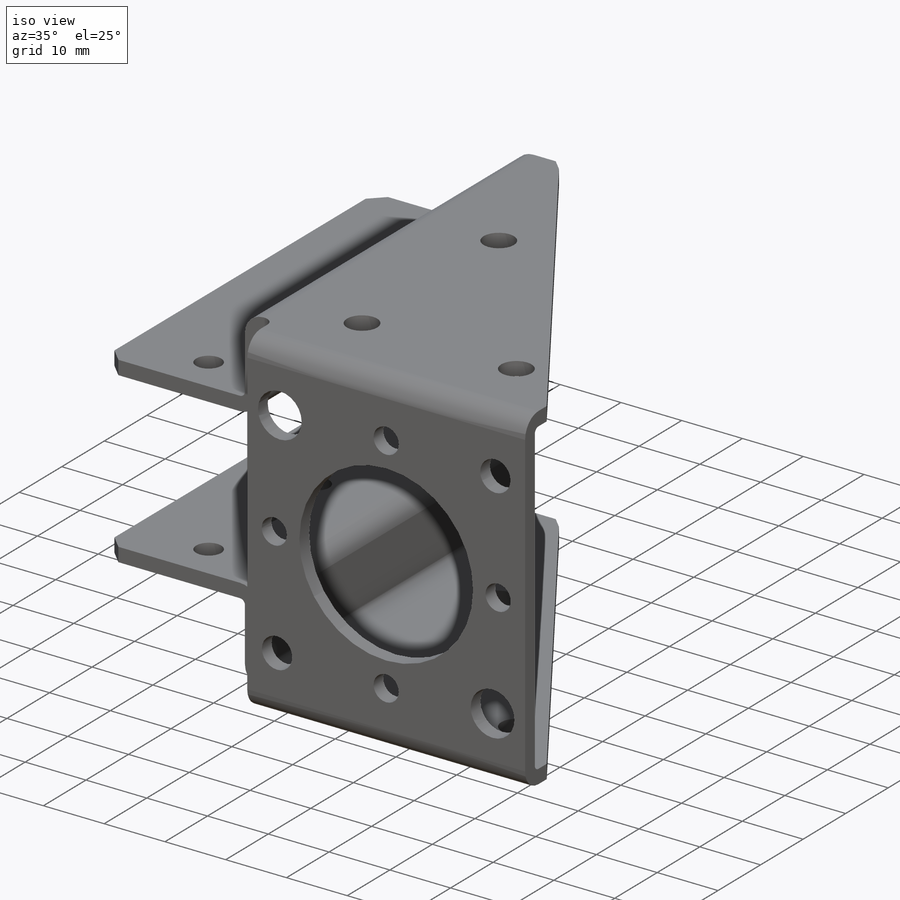
[diagram: iso view]
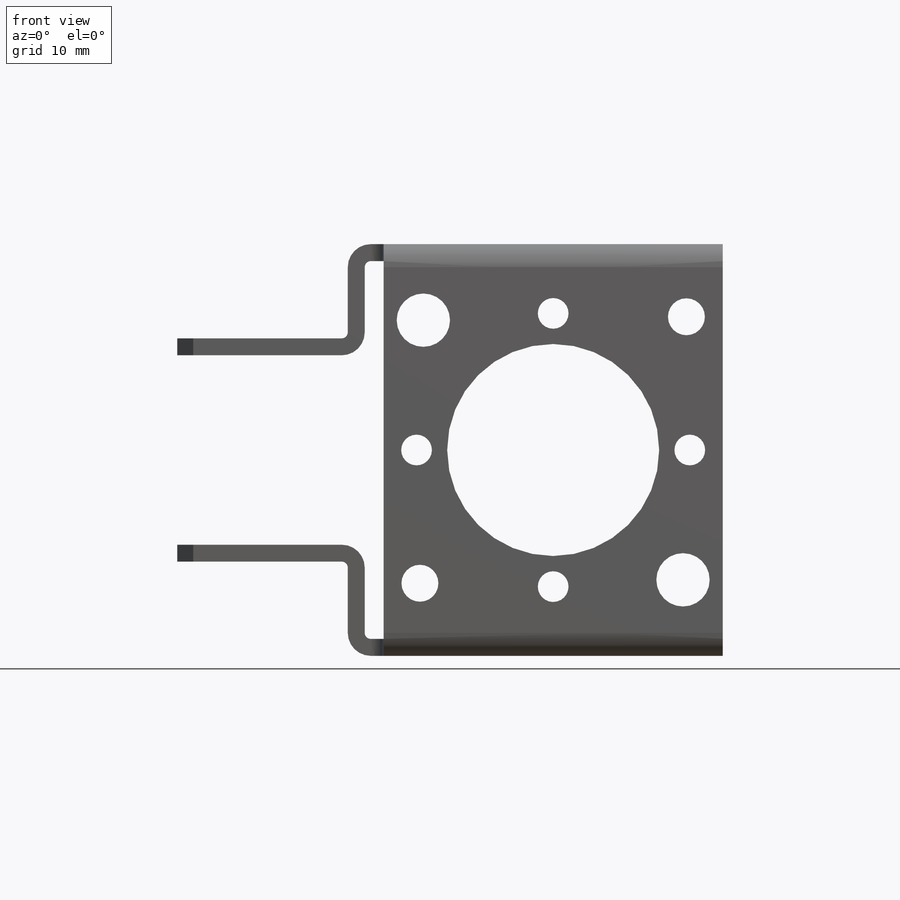
[diagram: front view]
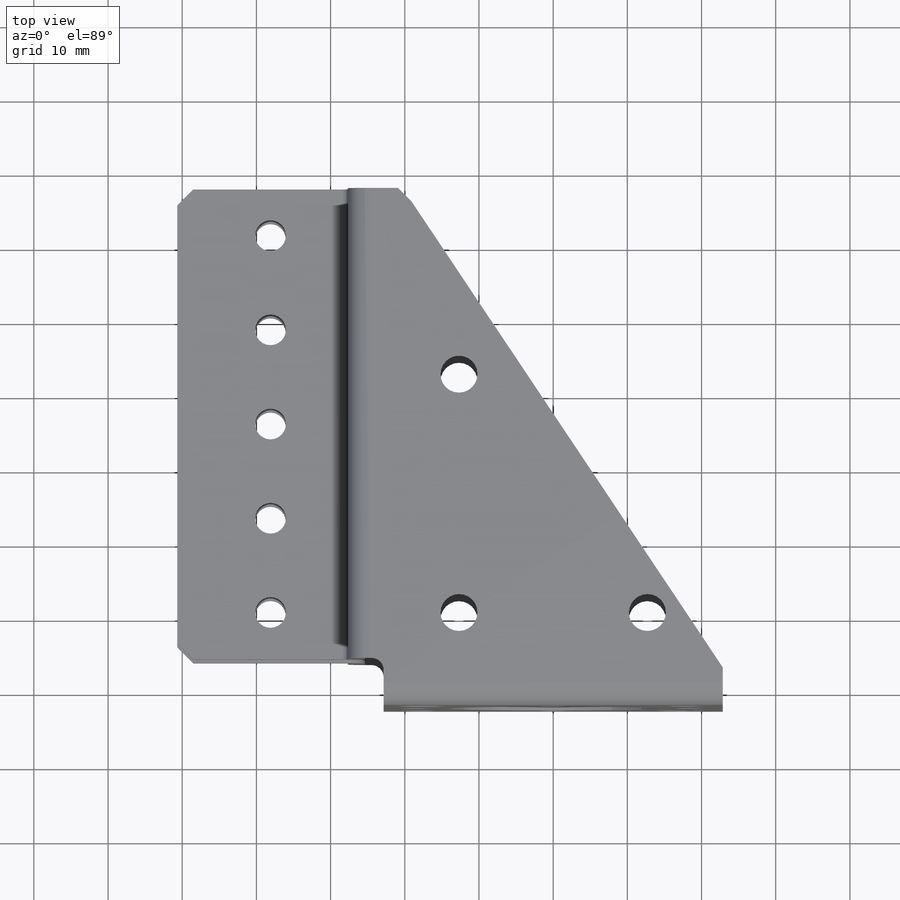
[diagram: top view]
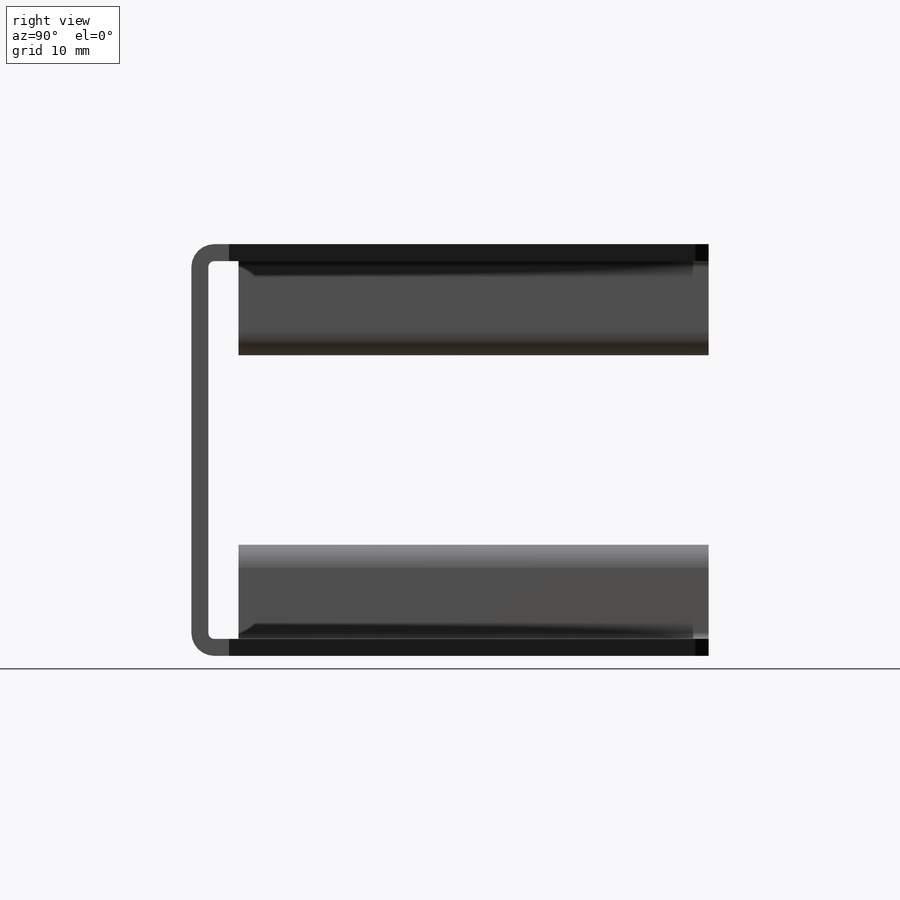
[diagram: right view]
SOLIDWORKS PART (.sldprt)
format: sldprt  version: not decoded by parser v0  size: 587,776 bytes
history: native  units: mm
features: sketch x29, hole x9, extrude x8, cut_extrude x3, chamfer x3, fillet x3, material x1, plane x1 (+13 scaffold rows collapsed)
feature tree (70):
  scaffold x13  (default folders/planes/origin — collapsed)
  material  "Material <not specified>"
  plane  "Plane1"  Offset=2.286mm
  sketch  "Sketch1"
  extrude  "Boss-Extrude1"  Depth=5.08mm
  sketch  "Sketch2"
  extrude  "Boss-Extrude2"  Depth=2.286mm
  sketch  "Sketch3"
  extrude  "Boss-Extrude3"  Depth=2.286mm
  sketch  "Sketch4"
  cut_extrude  "Cut-Extrude1"  Depth=2.794mm
  sketch  "Sketch5"
  extrude  "Boss-Extrude4"  Depth=2.54mm
  sketch  "Sketch6"
  extrude  "Boss-Extrude5"  Depth=27.813mm
  sketch  "Sketch7"
  extrude  "Boss-Extrude6"  Depth=12.7mm
  sketch  "Sketch8"
  extrude  "Boss-Extrude7"  Depth=27.813mm
  sketch  "Sketch9"
  extrude  "Boss-Extrude8"  Depth=12.7mm
  sketch  "Sketch10"
  cut_extrude  "Cut-Extrude2"  Depth=63.373mm
  sketch  "Sketch11"
  cut_extrude  "Cut-Extrude3"  Depth=63.373mm
  hole  "Hole1"  Diameter=4.9784mm Depth=2.286mm
  sketch  "Sketch13"
  sketch  "Sketch12"  dims[Diameter=4.9784mm Depth=2.286mm]
  hole  "M3.5 Clearance Hole1"  Diameter=4.1402mm Depth=69.723mm
  sketch  "Sketch15"
  sketch  "Sketch14"  dims[hole-wizard template sketch: 60 standard entries collapsed; hole parameters kept: c18.Thru Hole Depth=69.723mm]
  hole  "M3.5 Clearance Hole2"  Diameter=4.1402mm Depth=2.286025mm
  sketch  "Sketch17"
  sketch  "Sketch16"  dims[hole-wizard template sketch: 60 standard entries collapsed; hole parameters kept: c18.Thru Hole Depth=~2.286025mm]
  hole  "M25 Clearance Hole1"  Diameter=28.575mm Depth=2.286025mm
  sketch  "Sketch19"
  sketch  "Sketch18"  dims[hole-wizard template sketch: 59 standard entries collapsed; hole parameters kept: c18.Thru Hole Dia.=28.575mm c18.Thru Hole Depth=~2.286025mm]
  hole  "M6.5 Clearance Hole1"  Diameter=7.1882mm Depth=2.286025mm
  sketch  "Sketch21"
  sketch  "Sketch20"  dims[hole-wizard template sketch: 59 standard entries collapsed; hole parameters kept: c18.Thru Hole Dia.=7.1882mm c18.Thru Hole Depth=~2.286025mm]
  hole  "Hole2"  Diameter=4.9784mm Depth=2.286025mm
  sketch  "Sketch23"
  sketch  "Sketch22"  dims[Diameter=4.9784mm Depth=~2.286025mm]
  hole  "M3.5 Clearance Hole3"  Diameter=4.1402mm Depth=2.286mm
  sketch  "Sketch25"
  sketch  "Sketch24"  dims[hole-wizard template sketch: 60 standard entries collapsed; hole parameters kept: c18.Thru Hole Depth=2.286mm]
  hole  "Hole3"  Diameter=4.9784mm Depth=2.28605mm
  sketch  "Sketch27"
  sketch  "Sketch26"  dims[Diameter=4.9784mm Depth=~2.28605mm]
  hole  "M3.5 Clearance Hole4"  Diameter=4.1402mm Depth=14.98605mm
  sketch  "Sketch29"
  sketch  "Sketch28"  dims[hole-wizard template sketch: 60 standard entries collapsed; hole parameters kept: c18.Thru Hole Depth=~14.98605mm]
  chamfer  "Chamfer1"  Distance=0.596085mm Angle=45deg
  chamfer  "Chamfer2"  Distance=2.159mm Angle=45deg
  chamfer  "Chamfer3"  Distance=2.159mm Angle=11.258011deg
  fillet  "Fillet1"  Radius=0.8128mm
  fillet  "Fillet2"  Radius=1.6256mm
  fillet  "Fillet3"  Radius=3.0988mm
decode coverage: 35 of 55 modeling features carry decoded parameters
note: ~ marks probable driven/reference dimensions
summary: Diameter pulled from absorbed wizard sketch
note: suppression state not decoded; provenance and decode notes live in map.json
